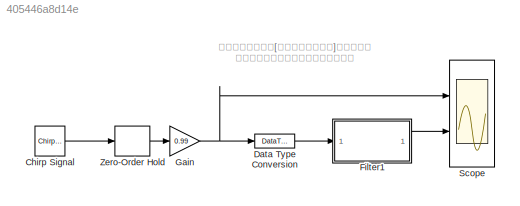
MODEL slx_405446a8d14e
KIND model
CONFIG AbsTol = auto
CONFIG FixedStep = auto
CONFIG MaxStep = auto
CONFIG MinStep = auto
CONFIG PreLoadFcn = [num,den] = butter(1,0.3);
CONFIG RelTol = 1e-3
CONFIG SampleTimeConstraint = Unconstrained
CONFIG Solver = FixedStepDiscrete
CONFIG SolverMode = SingleTasking
CONFIG SolverName = FixedStepDiscrete
CONFIG StartTime = 0.0
CONFIG StopTime = 10
BLOCK [Reference] Chirp Signal  REF=simulink/Sources/Chirp Signal
  Ports = [0, 1]
  SourceBlock = simulink/Sources/Chirp Signal
  SourceType = chirp
BLOCK [DataTypeConversion] Data Type Conversion
  RndMeth = Floor
  SaturateOnIntegerOverflow = off
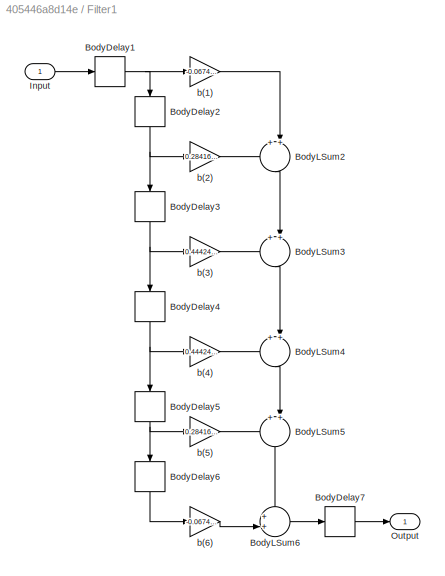
BLOCK [SubSystem] Filter1
  ErrorFcn = dspFilterRealizedInBasicElemsAlgLoopErrFcnCallback
  MinMaxOverflowLogging = MinMaxAndOverflow
  Ports = [1, 1]
  RequestExecContextInheritance = off
  Tag = FilterWizardSubSystem
  TreatAsAtomicUnit = on
  UserDataPersistent = on
  Variant = off
BLOCK [Delay] Filter1/BodyDelay1
  DelayLength = 1
  InitialCondition = 0
  InputPortMap = u0
  InputProcessing = Columns as channels (frame based)
  Ports = [1, 1]
  UserDataPersistent = on
BLOCK [Delay] Filter1/BodyDelay2
  DelayLength = 1
  InitialCondition = 0
  InputPortMap = u0
  InputProcessing = Columns as channels (frame based)
  Ports = [1, 1]
  UserDataPersistent = on
BLOCK [Delay] Filter1/BodyDelay3
  DelayLength = 1
  InitialCondition = 0
  InputPortMap = u0
  InputProcessing = Columns as channels (frame based)
  Ports = [1, 1]
  UserDataPersistent = on
BLOCK [Delay] Filter1/BodyDelay4
  DelayLength = 1
  InitialCondition = 0
  InputPortMap = u0
  InputProcessing = Columns as channels (frame based)
  Ports = [1, 1]
  UserDataPersistent = on
BLOCK [Delay] Filter1/BodyDelay5
  DelayLength = 1
  InitialCondition = 0
  InputPortMap = u0
  InputProcessing = Columns as channels (frame based)
  Ports = [1, 1]
  UserDataPersistent = on
BLOCK [Delay] Filter1/BodyDelay6
  DelayLength = 1
  InitialCondition = 0
  InputPortMap = u0
  InputProcessing = Columns as channels (frame based)
  Ports = [1, 1]
  UserDataPersistent = on
BLOCK [Delay] Filter1/BodyDelay7
  DelayLength = 1
  InitialCondition = 0
  InputPortMap = u0
  InputProcessing = Columns as channels (frame based)
  Ports = [1, 1]
  UserDataPersistent = on
BLOCK [Sum] Filter1/BodyLSum2
  IconShape = round
  InputSameDT = off
  Inputs = ++|
  OutDataTypeStr = double
  Ports = [2, 1]
  RndMeth = Nearest
BLOCK [Sum] Filter1/BodyLSum3
  IconShape = round
  InputSameDT = off
  Inputs = ++|
  OutDataTypeStr = double
  Ports = [2, 1]
  RndMeth = Nearest
BLOCK [Sum] Filter1/BodyLSum4
  IconShape = round
  InputSameDT = off
  Inputs = ++|
  OutDataTypeStr = double
  Ports = [2, 1]
  RndMeth = Nearest
BLOCK [Sum] Filter1/BodyLSum5
  IconShape = round
  InputSameDT = off
  Inputs = ++|
  OutDataTypeStr = double
  Ports = [2, 1]
  RndMeth = Nearest
BLOCK [Sum] Filter1/BodyLSum6
  IconShape = round
  InputSameDT = off
  Inputs = ++|
  OutDataTypeStr = double
  Ports = [2, 1]
  RndMeth = Nearest
BLOCK [Inport] Filter1/Input
  IconDisplay = Port number
  OutDataTypeStr = double
  OutMax = 1
  OutMin = -1
BLOCK [Outport] Filter1/Output
  IconDisplay = Port number
BLOCK [Gain] Filter1/b(1)
  Gain = -0.067494123828037503
  OutDataTypeStr = double
  ParamDataTypeStr = double
  RndMeth = Nearest
BLOCK [Gain] Filter1/b(2)
  Gain = 0.28416708143415809
  OutDataTypeStr = double
  ParamDataTypeStr = double
  RndMeth = Nearest
BLOCK [Gain] Filter1/b(3)
  Gain = 0.44424423787605283
  OutDataTypeStr = double
  ParamDataTypeStr = double
  RndMeth = Nearest
BLOCK [Gain] Filter1/b(4)
  Gain = 0.44424423787605283
  OutDataTypeStr = double
  ParamDataTypeStr = double
  RndMeth = Nearest
BLOCK [Gain] Filter1/b(5)
  Gain = 0.28416708143415809
  OutDataTypeStr = double
  ParamDataTypeStr = double
  RndMeth = Nearest
BLOCK [Gain] Filter1/b(6)
  Gain = -0.067494123828037503
  OutDataTypeStr = double
  ParamDataTypeStr = double
  RndMeth = Nearest
BLOCK [Gain] Gain
  Gain = 0.99
  OutDataTypeStr = Inherit: Inherit via internal rule
  ParamDataTypeStr = Inherit: Inherit via internal rule
  SaturateOnIntegerOverflow = off
BLOCK [Scope] Scope
  NumInputPorts = 2
  Ports = [2]
  ScopeSpecificationString = C++SS(StrPVP('Location','[514, 59, 1350, 703]'),StrPVP('Open','off'),MxPVP('AxesTitles',24,'struct(''axes1'',''%<SignalLabel>'',''axes2'',''%<SignalLabel>'')'),MxPVP('ScopeGraphics',28,'struct(''FigureColor'',''[0.5 0.5 0.5]'',''AxesColor'',''[0 0 0]'',''AxesTickColor'',''[1 1 1]'',''LineColors'',''[1 1 0;1 0 1;0 1 1;1 0 0;0 1 0;0 0 1]'',''LineStyles'',''-|-|-|-|-|-'',''LineWidths'',''[0.5 0.5 0.5...<+310ch>
BLOCK [ZeroOrderHold] Zero-Order Hold
  SampleTime = 1/1000
ANNOTATION (root): ツールメニューの[固定小数点ツール]を起動して オートケーリングを実施して下さい。
LINE Chirp Signal:1 -> Zero-Order Hold:1
LINE Data Type Conversion:1 -> Filter1:1
NET Filter1/BodyDelay1:1 -> Filter1/BodyDelay2:1, Filter1/b(1):1
NET Filter1/BodyDelay2:1 -> Filter1/BodyDelay3:1, Filter1/b(2):1
NET Filter1/BodyDelay3:1 -> Filter1/BodyDelay4:1, Filter1/b(3):1
NET Filter1/BodyDelay4:1 -> Filter1/BodyDelay5:1, Filter1/b(4):1
NET Filter1/BodyDelay5:1 -> Filter1/BodyDelay6:1, Filter1/b(5):1
LINE Filter1/BodyDelay6:1 -> Filter1/b(6):1
LINE Filter1/BodyDelay7:1 -> Filter1/Output:1
LINE Filter1/BodyLSum2:1 -> Filter1/BodyLSum3:2
LINE Filter1/BodyLSum3:1 -> Filter1/BodyLSum4:2
LINE Filter1/BodyLSum4:1 -> Filter1/BodyLSum5:2
LINE Filter1/BodyLSum5:1 -> Filter1/BodyLSum6:1
LINE Filter1/BodyLSum6:1 -> Filter1/BodyDelay7:1
LINE Filter1/Input:1 -> Filter1/BodyDelay1:1
LINE Filter1/b(1):1 -> Filter1/BodyLSum2:2
LINE Filter1/b(2):1 -> Filter1/BodyLSum2:1
LINE Filter1/b(3):1 -> Filter1/BodyLSum3:1
LINE Filter1/b(4):1 -> Filter1/BodyLSum4:1
LINE Filter1/b(5):1 -> Filter1/BodyLSum5:1
LINE Filter1/b(6):1 -> Filter1/BodyLSum6:2
LINE Filter1:1 -> Scope:2
NET Gain:1 -> Data Type Conversion:1, Scope:1
LINE Zero-Order Hold:1 -> Gain:1
note: NET lines group one-source signal fan-out (src -> all destinations, sorted); 1:1 wires keep LINE
